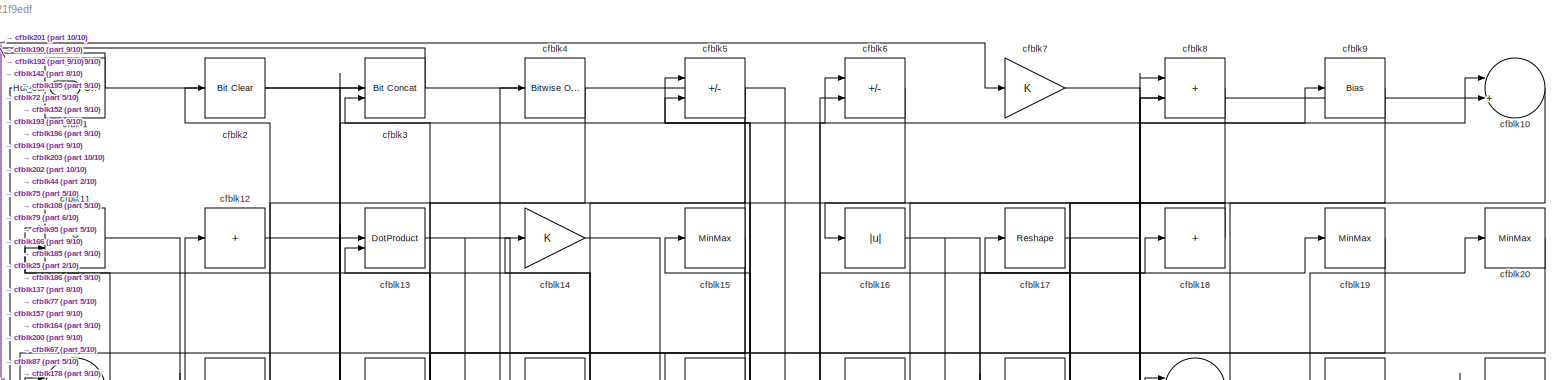
[diagram: root canvas - part 1/10, full width, top band]
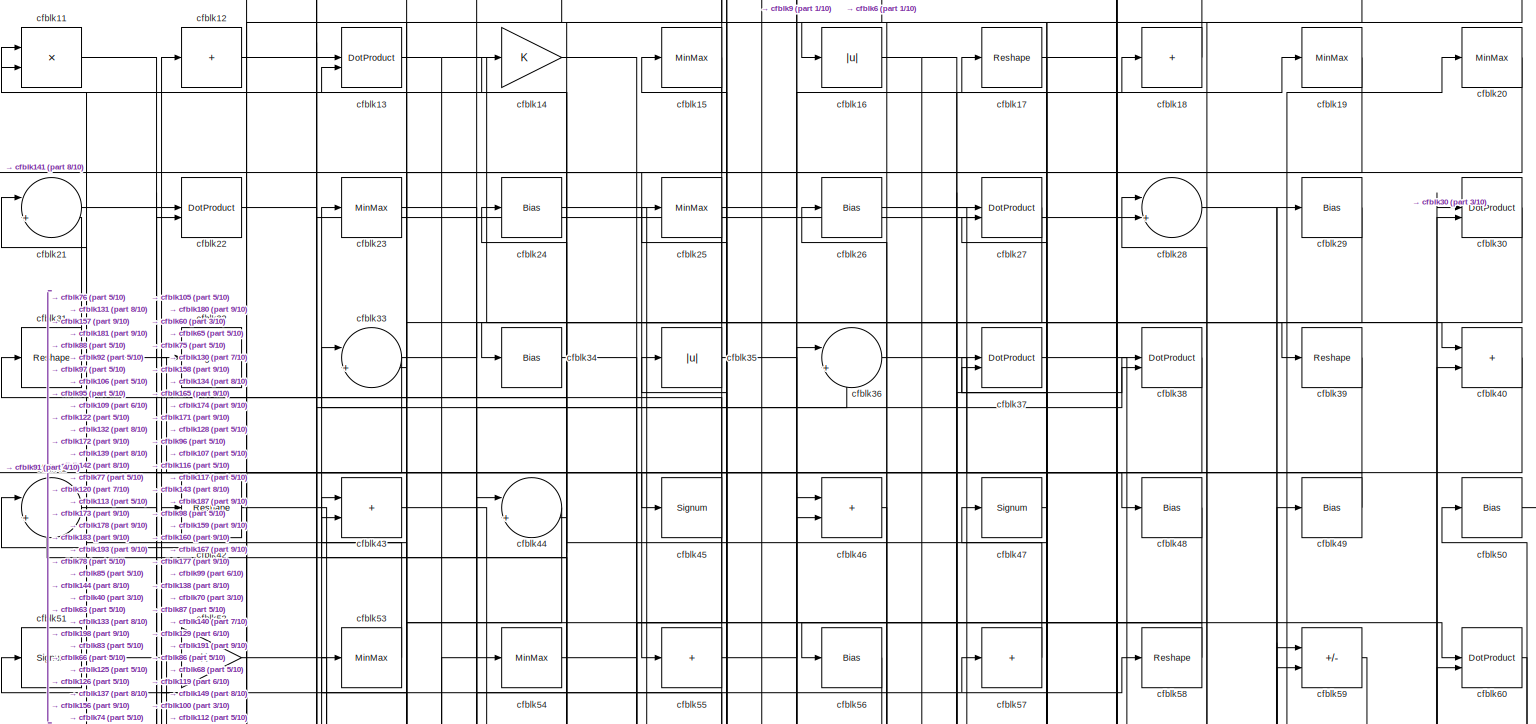
[diagram: root canvas - part 2/10, full width, top band]
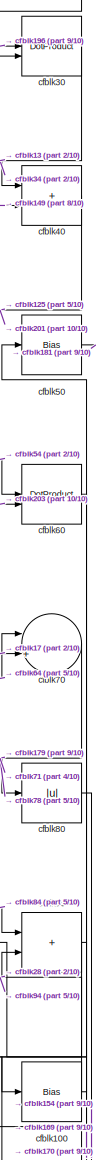
[diagram: root canvas - part 3/10, top right region]
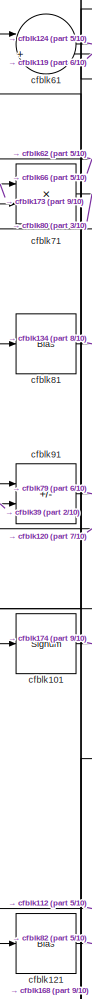
[diagram: root canvas - part 4/10, middle left region]
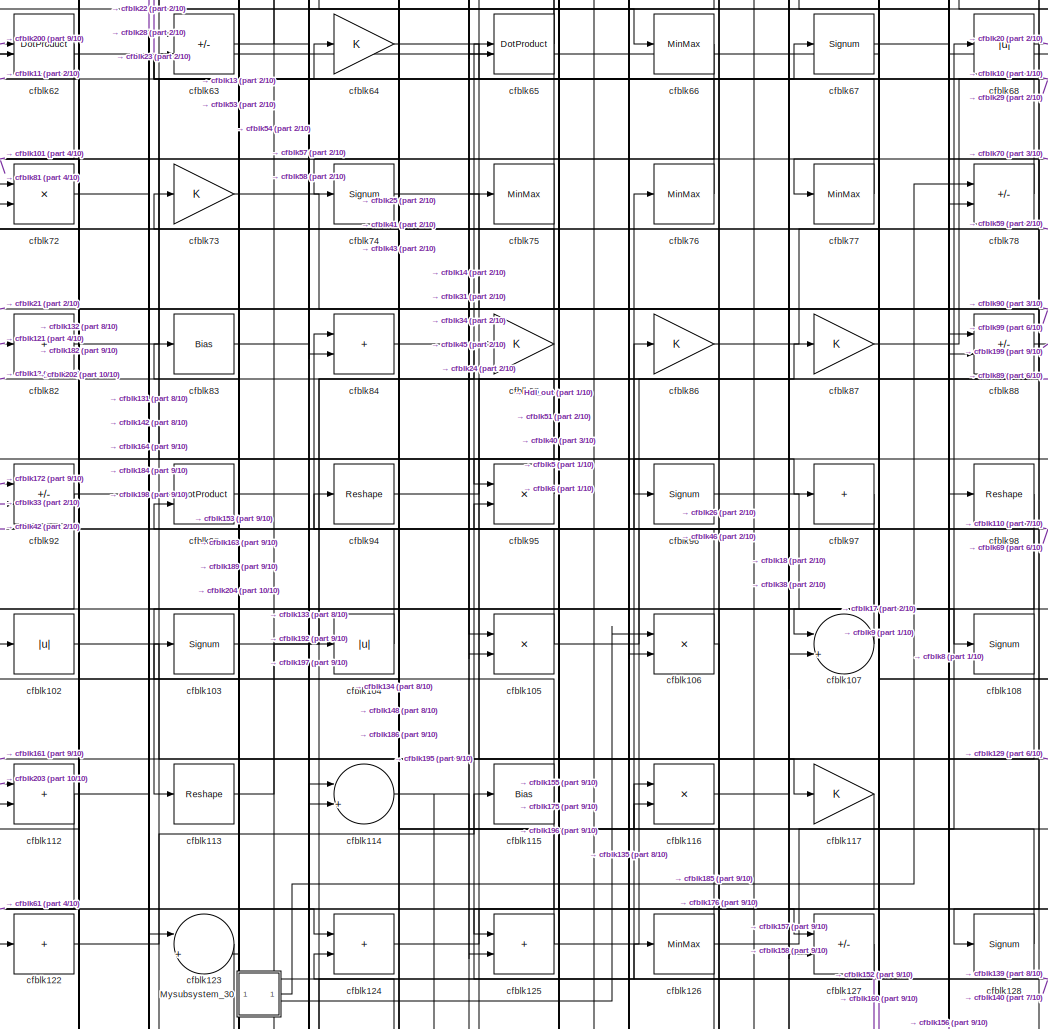
[diagram: root canvas - part 5/10, central region]
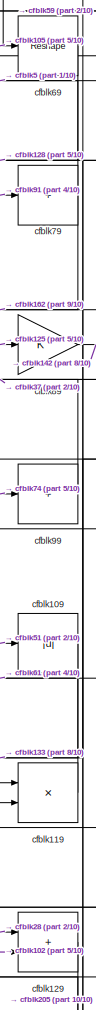
[diagram: root canvas - part 6/10, middle right region]
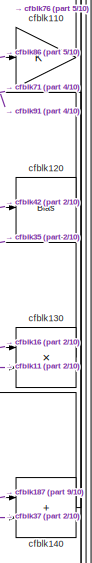
[diagram: root canvas - part 7/10, middle right region]
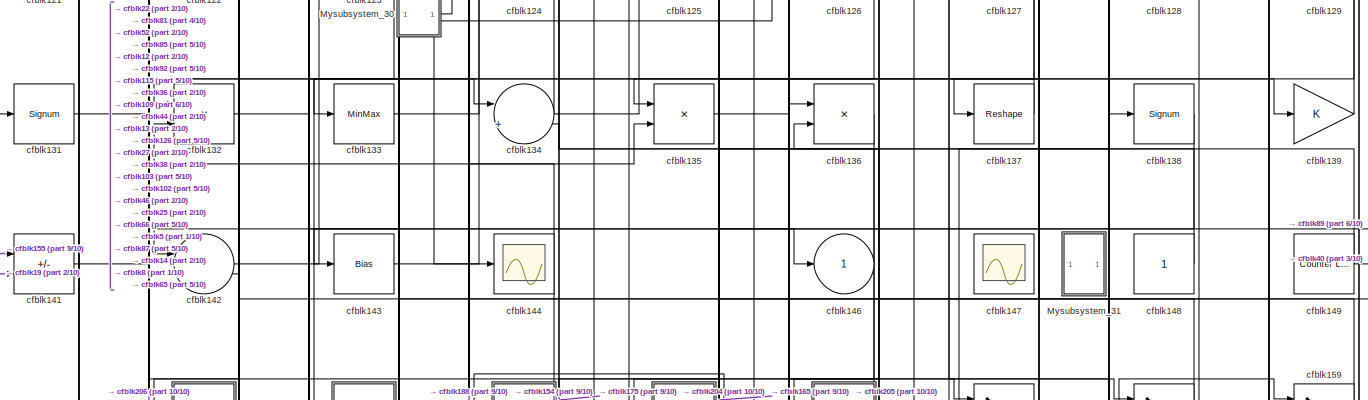
[diagram: root canvas - part 8/10, full width, bottom band]
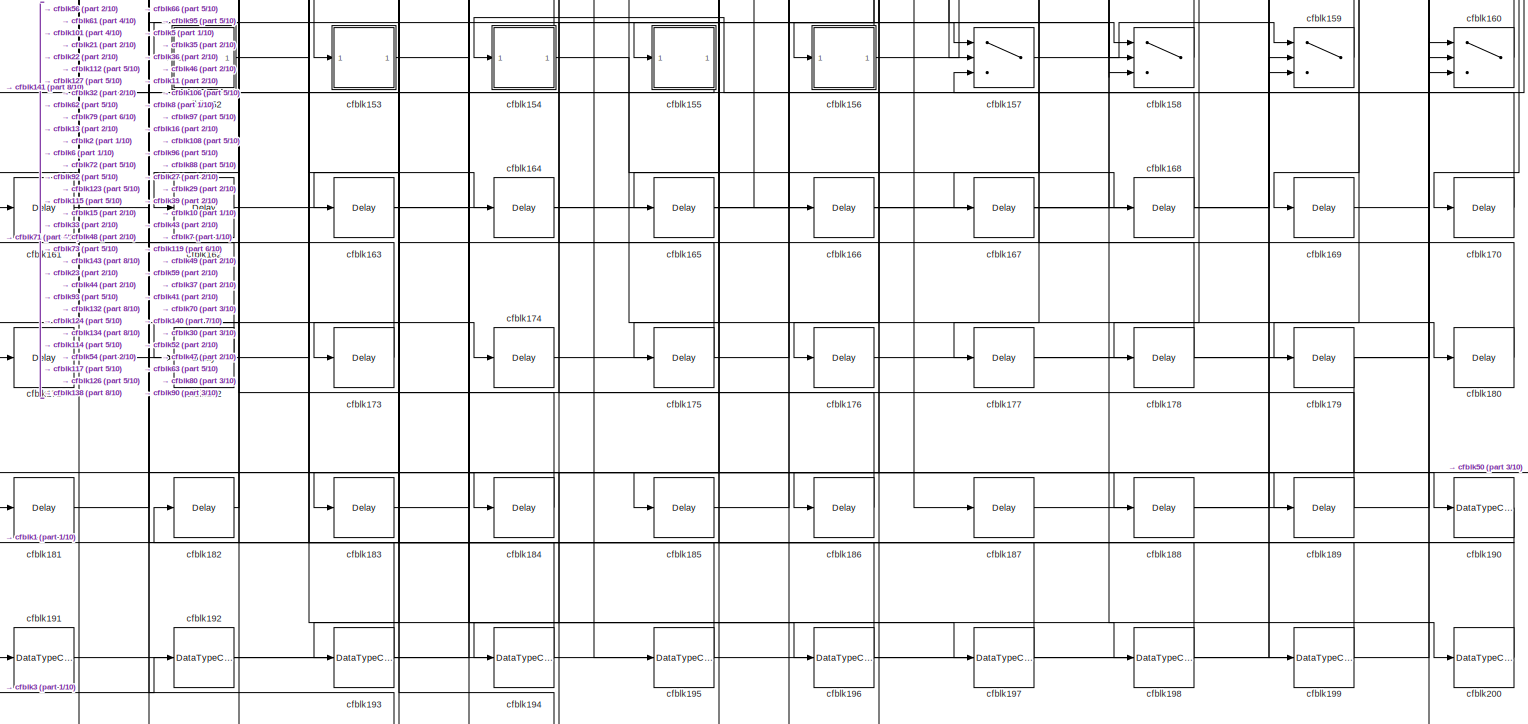
[diagram: root canvas - part 9/10, full width, bottom band]
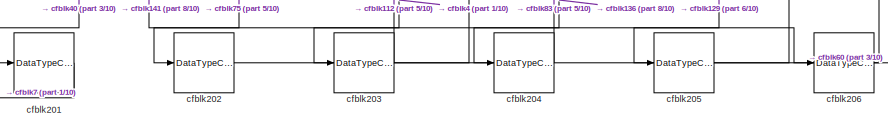
[diagram: root canvas - part 10/10, bottom left region]
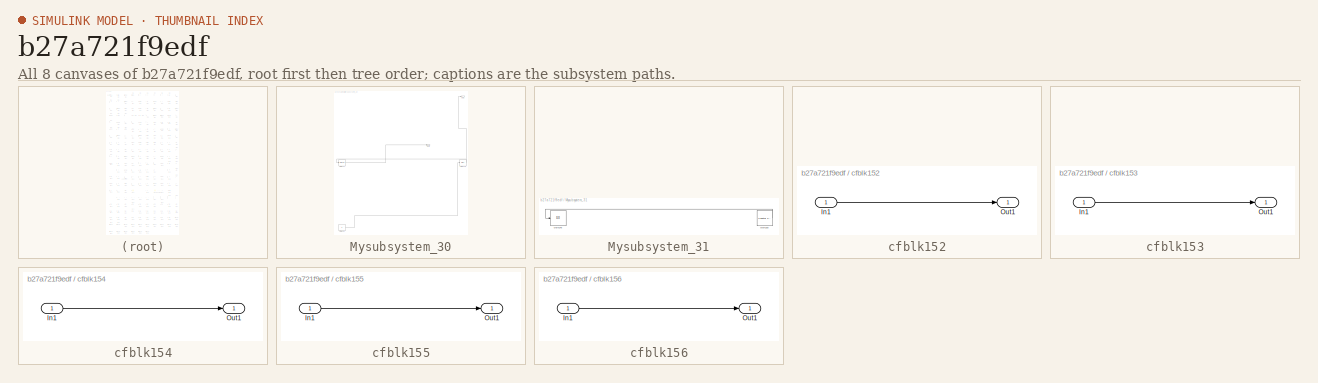
[diagram: thumbnail index - all 8 canvases of the model, root first then tree order]
MODEL slx_b27a721f9edf
KIND model
CONFIG AbsTol = auto
CONFIG EnableMultiTasking = off
CONFIG FixedStep = auto
CONFIG MaxStep = auto
CONFIG MinStep = auto
CONFIG RelTol = 1e-3
CONFIG SampleTimeConstraint = Unconstrained
CONFIG SolverName = VariableStepAuto
CONFIG StartTime = 0.0
CONFIG StopTime = 10.0
BLOCK [Outport] Hdl_out
  OutDataTypeStr = uint8
  Port = 2
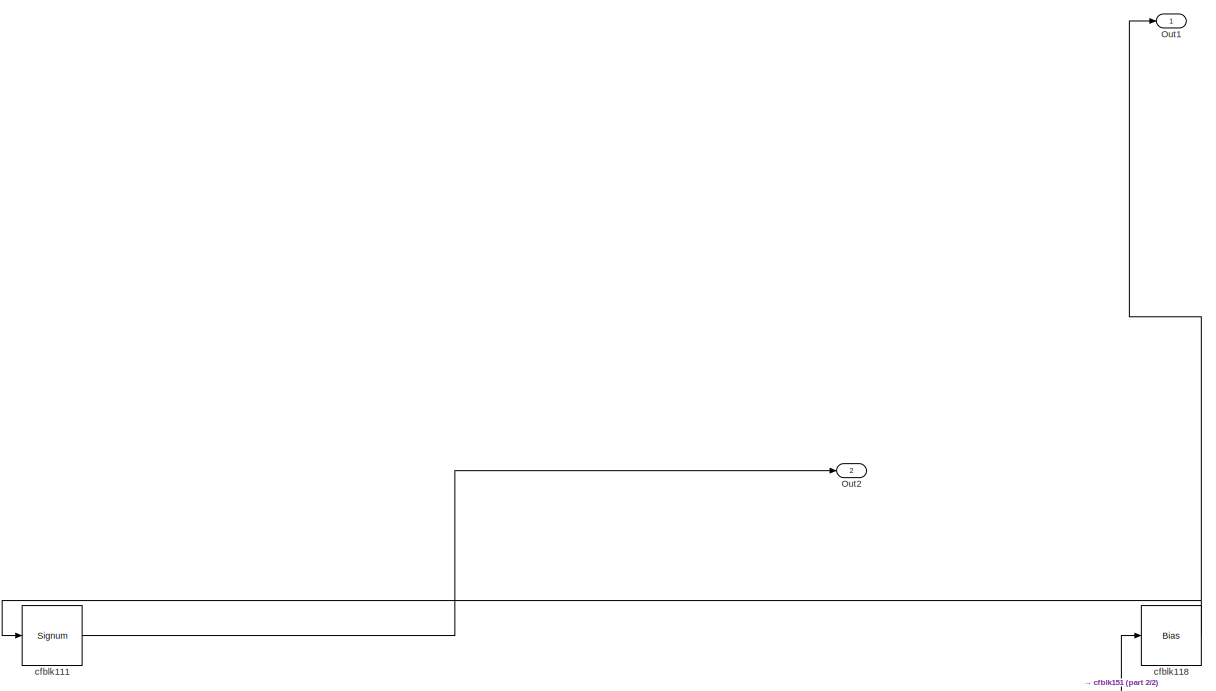
[diagram: Mysubsystem_30 - part 1/2, full width, top band]
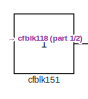
[diagram: Mysubsystem_30 - part 2/2, bottom left region]
BLOCK [SubSystem] Mysubsystem_30
  RTWFcnName = Mysubsystem_30
  RTWFcnNameOpts = User specified
  RTWFileNameOpts = Use function name
  RTWSystemCode = Reusable function
  TreatAsAtomicUnit = on
BLOCK [Outport] Mysubsystem_30/Out1
BLOCK [Outport] Mysubsystem_30/Out2
  Port = 2
BLOCK [Signum] Mysubsystem_30/cfblk111
BLOCK [Bias] Mysubsystem_30/cfblk118
  Bias = 0.0
  SaturateOnIntegerOverflow = off
BLOCK [Constant] Mysubsystem_30/cfblk151
  SampleTime = -1
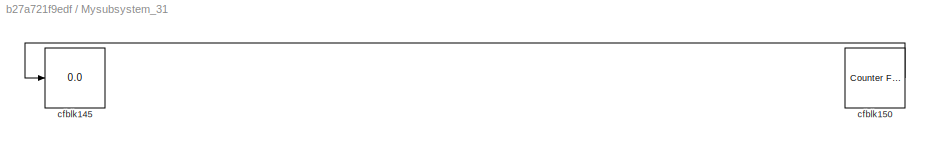
BLOCK [SubSystem] Mysubsystem_31
  RTWFcnName = Mysubsystem_31
  RTWFcnNameOpts = User specified
  RTWFileNameOpts = Use function name
  RTWSystemCode = Reusable function
  TreatAsAtomicUnit = on
BLOCK [Display] Mysubsystem_31/cfblk145
  Decimation = 1
BLOCK [Reference] Mysubsystem_31/cfblk150  REF=hdlsllib/Sources/Counter
Free-Running
  SourceBlock = hdlsllib/Sources/Counter\nFree-Running
  SourceType = Counter Free-Running
BLOCK [Reference] cfblk1  REF=simulink/Logic and Bit
Operations/Bitwise
Operator
  LibrarySourceBlock = hdlsllib/Logic and Bit\nOperations/Bitwise\nOperator
  SourceBlock = simulink/Logic and Bit\nOperations/Bitwise\nOperator
  SourceType = Bitwise Operator
BLOCK [Sum] cfblk10
  Inputs = |++
  OutDataTypeStr = uint8
BLOCK [Bias] cfblk100
  Bias = 0.0
  SaturateOnIntegerOverflow = off
BLOCK [Signum] cfblk101
BLOCK [Abs] cfblk102
  OutDataTypeStr = uint8
  SaturateOnIntegerOverflow = off
BLOCK [Signum] cfblk103
BLOCK [Abs] cfblk104
  OutDataTypeStr = uint8
  SaturateOnIntegerOverflow = off
BLOCK [Product] cfblk105
  Inputs = */
  OutDataTypeStr = uint8
  RndMeth = Zero
  SaturateOnIntegerOverflow = on
BLOCK [Product] cfblk106
  Inputs = */
  OutDataTypeStr = uint8
  RndMeth = Zero
  SaturateOnIntegerOverflow = on
BLOCK [Sum] cfblk107
  Inputs = |++
  OutDataTypeStr = uint8
BLOCK [Signum] cfblk108
BLOCK [Abs] cfblk109
  OutDataTypeStr = uint8
  SaturateOnIntegerOverflow = off
BLOCK [Product] cfblk11
  Inputs = */
  OutDataTypeStr = uint8
  RndMeth = Zero
  SaturateOnIntegerOverflow = on
BLOCK [Gain] cfblk110
  OutDataTypeStr = uint8
BLOCK [Sum] cfblk112
  IconShape = rectangular
  OutDataTypeStr = uint8
BLOCK [Reshape] cfblk113
BLOCK [Sum] cfblk114
  Inputs = |++
  OutDataTypeStr = uint8
BLOCK [Bias] cfblk115
  Bias = 0.0
  SaturateOnIntegerOverflow = off
BLOCK [Product] cfblk116
  Inputs = */
  OutDataTypeStr = uint8
  RndMeth = Zero
  SaturateOnIntegerOverflow = on
BLOCK [Gain] cfblk117
  OutDataTypeStr = uint8
BLOCK [Product] cfblk119
  Inputs = */
  OutDataTypeStr = uint8
  RndMeth = Zero
  SaturateOnIntegerOverflow = on
BLOCK [Sum] cfblk12
  IconShape = rectangular
  Inputs = +
  OutDataTypeStr = uint8
BLOCK [Bias] cfblk120
  Bias = 0.0
  SaturateOnIntegerOverflow = off
BLOCK [Bias] cfblk121
  Bias = 0.0
  SaturateOnIntegerOverflow = off
BLOCK [Sum] cfblk122
  IconShape = rectangular
  Inputs = +
  OutDataTypeStr = uint8
BLOCK [Sum] cfblk123
  Inputs = |++
  OutDataTypeStr = uint8
BLOCK [Sum] cfblk124
  IconShape = rectangular
  OutDataTypeStr = uint8
BLOCK [Sum] cfblk125
  IconShape = rectangular
  OutDataTypeStr = uint8
BLOCK [MinMax] cfblk126
  OutDataTypeStr = uint8
BLOCK [Sum] cfblk127
  IconShape = rectangular
  Inputs = +-
  OutDataTypeStr = uint8
BLOCK [Signum] cfblk128
BLOCK [Sum] cfblk129
  IconShape = rectangular
  OutDataTypeStr = uint8
BLOCK [DotProduct] cfblk13
  OutDataTypeStr = uint8
BLOCK [Product] cfblk130
  Inputs = */
  OutDataTypeStr = uint8
  RndMeth = Zero
  SaturateOnIntegerOverflow = on
BLOCK [Signum] cfblk131
BLOCK [Product] cfblk132
  Inputs = */
  OutDataTypeStr = uint8
  RndMeth = Zero
  SaturateOnIntegerOverflow = on
BLOCK [MinMax] cfblk133
  OutDataTypeStr = uint8
BLOCK [Sum] cfblk134
  Inputs = |++
  OutDataTypeStr = uint8
BLOCK [Product] cfblk135
  Inputs = */
  OutDataTypeStr = uint8
  RndMeth = Zero
  SaturateOnIntegerOverflow = on
BLOCK [Product] cfblk136
  Inputs = */
  OutDataTypeStr = uint8
  RndMeth = Zero
  SaturateOnIntegerOverflow = on
BLOCK [Reshape] cfblk137
BLOCK [Signum] cfblk138
BLOCK [Gain] cfblk139
  OutDataTypeStr = uint8
BLOCK [Gain] cfblk14
  OutDataTypeStr = uint8
BLOCK [Sum] cfblk140
  IconShape = rectangular
  OutDataTypeStr = uint8
BLOCK [Sum] cfblk141
  IconShape = rectangular
  Inputs = +-
  OutDataTypeStr = uint8
BLOCK [Sum] cfblk142
  Inputs = |++
  OutDataTypeStr = uint8
BLOCK [Bias] cfblk143
  Bias = 0.0
  SaturateOnIntegerOverflow = off
BLOCK [Scope] cfblk144
  Floating = off
  NumInputPorts = 1
  ScopeSpecificationString = Simulink.scopes.TimeScopeBlockCfg('CurrentConfiguration', extmgr.ConfigurationSet(extmgr.Configuration('Core','General UI',true),extmgr.Configuration('Core','Source UI',true),extmgr.Configuration('Sources','WiredSimulink',true,'DataLoggingVariableName','ScopeData2','DataLoggingSaveFormat','Array','DataLoggingLimitDataPoints',true,'DataLoggingDecimation','1'),extmgr.Configuration('Visuals','Time Do...<+868ch>
BLOCK [Outport] cfblk146
  OutDataTypeStr = uint8
  VectorParamsAs1DForOutWhenUnconnected = off
BLOCK [Scope] cfblk147
  Floating = on
  NumInputPorts = 1
  ScopeSpecificationString = Simulink.scopes.TimeScopeBlockCfg('CurrentConfiguration', extmgr.ConfigurationSet(extmgr.Configuration('Core','General UI',true,'FigureColor',[0.156862745098039 0.156862745098039 0.156862745098039]),extmgr.Configuration('Core','Source UI',true),extmgr.Configuration('Sources','WiredSimulink',true,'DataLoggingVariableName','ScopeData1','DataLoggingSaveFormat','StructureWithTime','DataLoggingLimitDat...<+2713ch>
BLOCK [Constant] cfblk148
  OutDataTypeStr = uint8
  SampleTime = -1
BLOCK [Reference] cfblk149  REF=hdlsllib/Sources/Counter
Limited
  SourceBlock = hdlsllib/Sources/Counter\nLimited
  SourceType = Counter Limited
BLOCK [MinMax] cfblk15
  OutDataTypeStr = uint8
BLOCK [SubSystem] cfblk152
  LibrarySourceBlock = hdlsllib/Ports &\nSubsystems/Subsystem
BLOCK [Inport] cfblk152/In1
BLOCK [Outport] cfblk152/Out1
BLOCK [SubSystem] cfblk153
  LibrarySourceBlock = hdlsllib/Ports &\nSubsystems/Subsystem
BLOCK [Inport] cfblk153/In1
BLOCK [Outport] cfblk153/Out1
BLOCK [SubSystem] cfblk154
  LibrarySourceBlock = hdlsllib/Ports &\nSubsystems/Subsystem
BLOCK [Inport] cfblk154/In1
BLOCK [Outport] cfblk154/Out1
BLOCK [SubSystem] cfblk155
  LibrarySourceBlock = hdlsllib/Ports &\nSubsystems/Subsystem
BLOCK [Inport] cfblk155/In1
BLOCK [Outport] cfblk155/Out1
BLOCK [SubSystem] cfblk156
  LibrarySourceBlock = hdlsllib/Ports &\nSubsystems/Subsystem
BLOCK [Inport] cfblk156/In1
BLOCK [Outport] cfblk156/Out1
BLOCK [Switch] cfblk157
  InputSameDT = off
  OutDataTypeStr = uint8
  SaturateOnIntegerOverflow = off
BLOCK [Switch] cfblk158
  InputSameDT = off
  OutDataTypeStr = uint8
  SaturateOnIntegerOverflow = off
BLOCK [Switch] cfblk159
  InputSameDT = off
  OutDataTypeStr = uint8
  SaturateOnIntegerOverflow = off
BLOCK [Abs] cfblk16
  OutDataTypeStr = uint8
  SaturateOnIntegerOverflow = off
BLOCK [Switch] cfblk160
  InputSameDT = off
  OutDataTypeStr = uint8
  SaturateOnIntegerOverflow = off
BLOCK [Delay] cfblk161
  InputPortMap = u0
  SampleTime = 1
BLOCK [Delay] cfblk162
  InputPortMap = u0
  SampleTime = 1
BLOCK [Delay] cfblk163
  InputPortMap = u0
  SampleTime = 1
BLOCK [Delay] cfblk164
  InputPortMap = u0
  SampleTime = 1
BLOCK [Delay] cfblk165
  InputPortMap = u0
  SampleTime = 1
BLOCK [Delay] cfblk166
  InputPortMap = u0
  SampleTime = 1
BLOCK [Delay] cfblk167
  InputPortMap = u0
  SampleTime = 1
BLOCK [Delay] cfblk168
  InputPortMap = u0
  SampleTime = 1
BLOCK [Delay] cfblk169
  InputPortMap = u0
  SampleTime = 1
BLOCK [Reshape] cfblk17
BLOCK [Delay] cfblk170
  InputPortMap = u0
  SampleTime = 1
BLOCK [Delay] cfblk171
  InputPortMap = u0
  SampleTime = 1
BLOCK [Delay] cfblk172
  InputPortMap = u0
  SampleTime = 1
BLOCK [Delay] cfblk173
  InputPortMap = u0
  SampleTime = 1
BLOCK [Delay] cfblk174
  InputPortMap = u0
  SampleTime = 1
BLOCK [Delay] cfblk175
  InputPortMap = u0
  SampleTime = 1
BLOCK [Delay] cfblk176
  InputPortMap = u0
  SampleTime = 1
BLOCK [Delay] cfblk177
  InputPortMap = u0
  SampleTime = 1
BLOCK [Delay] cfblk178
  InputPortMap = u0
  SampleTime = 1
BLOCK [Delay] cfblk179
  InputPortMap = u0
  SampleTime = 1
BLOCK [Sum] cfblk18
  IconShape = rectangular
  Inputs = +
  OutDataTypeStr = uint8
BLOCK [Delay] cfblk180
  InputPortMap = u0
  SampleTime = 1
BLOCK [Delay] cfblk181
  InputPortMap = u0
  SampleTime = 1
BLOCK [Delay] cfblk182
  InputPortMap = u0
  SampleTime = 1
BLOCK [Delay] cfblk183
  InputPortMap = u0
  SampleTime = 1
BLOCK [Delay] cfblk184
  InputPortMap = u0
  SampleTime = 1
BLOCK [Delay] cfblk185
  InputPortMap = u0
  SampleTime = 1
BLOCK [Delay] cfblk186
  InputPortMap = u0
  SampleTime = 1
BLOCK [Delay] cfblk187
  InputPortMap = u0
  SampleTime = 1
BLOCK [Delay] cfblk188
  InputPortMap = u0
  SampleTime = 1
BLOCK [Delay] cfblk189
  InputPortMap = u0
  SampleTime = 1
BLOCK [MinMax] cfblk19
  OutDataTypeStr = uint8
BLOCK [DataTypeConversion] cfblk190
  OutDataTypeStr = uint8
  RndMeth = Floor
  SaturateOnIntegerOverflow = off
BLOCK [DataTypeConversion] cfblk191
  OutDataTypeStr = uint8
  RndMeth = Floor
  SaturateOnIntegerOverflow = off
BLOCK [DataTypeConversion] cfblk192
  OutDataTypeStr = uint8
  RndMeth = Floor
  SaturateOnIntegerOverflow = off
BLOCK [DataTypeConversion] cfblk193
  OutDataTypeStr = uint8
  RndMeth = Floor
  SaturateOnIntegerOverflow = off
BLOCK [DataTypeConversion] cfblk194
  OutDataTypeStr = uint8
  RndMeth = Floor
  SaturateOnIntegerOverflow = off
BLOCK [DataTypeConversion] cfblk195
  OutDataTypeStr = uint8
  RndMeth = Floor
  SaturateOnIntegerOverflow = off
BLOCK [DataTypeConversion] cfblk196
  OutDataTypeStr = uint8
  RndMeth = Floor
  SaturateOnIntegerOverflow = off
BLOCK [DataTypeConversion] cfblk197
  OutDataTypeStr = uint8
  RndMeth = Floor
  SaturateOnIntegerOverflow = off
BLOCK [DataTypeConversion] cfblk198
  OutDataTypeStr = uint8
  RndMeth = Floor
  SaturateOnIntegerOverflow = off
BLOCK [DataTypeConversion] cfblk199
  OutDataTypeStr = uint8
  RndMeth = Floor
  SaturateOnIntegerOverflow = off
BLOCK [Reference] cfblk2  REF=simulink/Logic and Bit
Operations/Bit Clear
  LibrarySourceBlock = hdlsllib/Logic and Bit\nOperations/Bit Clear
  SourceBlock = simulink/Logic and Bit\nOperations/Bit Clear
  SourceType = Bit Clear
BLOCK [MinMax] cfblk20
  OutDataTypeStr = uint8
BLOCK [DataTypeConversion] cfblk200
  OutDataTypeStr = uint8
  RndMeth = Floor
  SaturateOnIntegerOverflow = off
BLOCK [DataTypeConversion] cfblk201
  OutDataTypeStr = uint8
  RndMeth = Floor
  SaturateOnIntegerOverflow = off
BLOCK [DataTypeConversion] cfblk202
  OutDataTypeStr = uint8
  RndMeth = Floor
  SaturateOnIntegerOverflow = off
BLOCK [DataTypeConversion] cfblk203
  OutDataTypeStr = uint8
  RndMeth = Floor
  SaturateOnIntegerOverflow = off
BLOCK [DataTypeConversion] cfblk204
  OutDataTypeStr = uint8
  RndMeth = Floor
  SaturateOnIntegerOverflow = off
BLOCK [DataTypeConversion] cfblk205
  OutDataTypeStr = uint8
  RndMeth = Floor
  SaturateOnIntegerOverflow = off
BLOCK [DataTypeConversion] cfblk206
  OutDataTypeStr = uint8
  RndMeth = Floor
  SaturateOnIntegerOverflow = off
BLOCK [Sum] cfblk21
  Inputs = |++
  OutDataTypeStr = uint8
BLOCK [DotProduct] cfblk22
  OutDataTypeStr = uint8
BLOCK [MinMax] cfblk23
  OutDataTypeStr = uint8
BLOCK [Bias] cfblk24
  Bias = 0.0
  SaturateOnIntegerOverflow = off
BLOCK [MinMax] cfblk25
  OutDataTypeStr = uint8
BLOCK [Bias] cfblk26
  Bias = 0.0
  SaturateOnIntegerOverflow = off
BLOCK [DotProduct] cfblk27
  OutDataTypeStr = uint8
BLOCK [Sum] cfblk28
  Inputs = |++
  OutDataTypeStr = uint8
BLOCK [Bias] cfblk29
  Bias = 0.0
  SaturateOnIntegerOverflow = off
BLOCK [Reference] cfblk3  REF=hdlsllib/Logic and Bit
Operations/Bit Concat
  SourceBlock = hdlsllib/Logic and Bit\nOperations/Bit Concat
  SourceType = Bit Concat
BLOCK [DotProduct] cfblk30
  OutDataTypeStr = uint8
BLOCK [Reshape] cfblk31
BLOCK [Signum] cfblk32
BLOCK [Sum] cfblk33
  Inputs = |++
  OutDataTypeStr = uint8
BLOCK [Bias] cfblk34
  Bias = 0.0
  SaturateOnIntegerOverflow = off
BLOCK [Abs] cfblk35
  OutDataTypeStr = uint8
  SaturateOnIntegerOverflow = off
BLOCK [Sum] cfblk36
  Inputs = |++
  OutDataTypeStr = uint8
BLOCK [DotProduct] cfblk37
  OutDataTypeStr = uint8
BLOCK [DotProduct] cfblk38
  OutDataTypeStr = uint8
BLOCK [Reshape] cfblk39
BLOCK [Reference] cfblk4  REF=simulink/Logic and Bit
Operations/Bitwise
Operator
  LibrarySourceBlock = hdlsllib/Logic and Bit\nOperations/Bitwise\nOperator
  SourceBlock = simulink/Logic and Bit\nOperations/Bitwise\nOperator
  SourceType = Bitwise Operator
BLOCK [Sum] cfblk40
  IconShape = rectangular
  OutDataTypeStr = uint8
BLOCK [Sum] cfblk41
  Inputs = |++
  OutDataTypeStr = uint8
BLOCK [Reshape] cfblk42
BLOCK [Sum] cfblk43
  IconShape = rectangular
  OutDataTypeStr = uint8
BLOCK [Sum] cfblk44
  Inputs = |++
  OutDataTypeStr = uint8
BLOCK [Signum] cfblk45
BLOCK [Sum] cfblk46
  IconShape = rectangular
  OutDataTypeStr = uint8
BLOCK [Signum] cfblk47
BLOCK [Bias] cfblk48
  Bias = 0.0
  SaturateOnIntegerOverflow = off
BLOCK [Bias] cfblk49
  Bias = 0.0
  SaturateOnIntegerOverflow = off
BLOCK [Sum] cfblk5
  IconShape = rectangular
  Inputs = +-
  OutDataTypeStr = uint8
BLOCK [Bias] cfblk50
  Bias = 0.0
  SaturateOnIntegerOverflow = off
BLOCK [Signum] cfblk51
BLOCK [Gain] cfblk52
  OutDataTypeStr = uint8
BLOCK [MinMax] cfblk53
  OutDataTypeStr = uint8
BLOCK [MinMax] cfblk54
  OutDataTypeStr = uint8
BLOCK [Sum] cfblk55
  IconShape = rectangular
  Inputs = +
  OutDataTypeStr = uint8
BLOCK [Bias] cfblk56
  Bias = 0.0
  SaturateOnIntegerOverflow = off
BLOCK [Sum] cfblk57
  IconShape = rectangular
  Inputs = +
  OutDataTypeStr = uint8
BLOCK [Reshape] cfblk58
BLOCK [Sum] cfblk59
  IconShape = rectangular
  Inputs = +-
  OutDataTypeStr = uint8
BLOCK [Sum] cfblk6
  IconShape = rectangular
  Inputs = +-
  OutDataTypeStr = uint8
BLOCK [DotProduct] cfblk60
  OutDataTypeStr = uint8
BLOCK [Sum] cfblk61
  Inputs = |++
  OutDataTypeStr = uint8
BLOCK [DotProduct] cfblk62
  OutDataTypeStr = uint8
BLOCK [Sum] cfblk63
  IconShape = rectangular
  Inputs = +-
  OutDataTypeStr = uint8
BLOCK [Gain] cfblk64
  OutDataTypeStr = uint8
BLOCK [DotProduct] cfblk65
  OutDataTypeStr = uint8
BLOCK [MinMax] cfblk66
  OutDataTypeStr = uint8
BLOCK [Signum] cfblk67
BLOCK [Abs] cfblk68
  OutDataTypeStr = uint8
  SaturateOnIntegerOverflow = off
BLOCK [Reshape] cfblk69
BLOCK [Gain] cfblk7
  OutDataTypeStr = uint8
BLOCK [Sum] cfblk70
  Inputs = |++
  OutDataTypeStr = uint8
BLOCK [Product] cfblk71
  Inputs = */
  OutDataTypeStr = uint8
  RndMeth = Zero
  SaturateOnIntegerOverflow = on
BLOCK [Product] cfblk72
  Inputs = */
  OutDataTypeStr = uint8
  RndMeth = Zero
  SaturateOnIntegerOverflow = on
BLOCK [Gain] cfblk73
  OutDataTypeStr = uint8
BLOCK [Signum] cfblk74
BLOCK [MinMax] cfblk75
  OutDataTypeStr = uint8
BLOCK [MinMax] cfblk76
  OutDataTypeStr = uint8
BLOCK [MinMax] cfblk77
  OutDataTypeStr = uint8
BLOCK [Sum] cfblk78
  IconShape = rectangular
  Inputs = +-
  OutDataTypeStr = uint8
BLOCK [Sum] cfblk79
  IconShape = rectangular
  Inputs = +
  OutDataTypeStr = uint8
BLOCK [Sum] cfblk8
  IconShape = rectangular
  OutDataTypeStr = uint8
BLOCK [Abs] cfblk80
  OutDataTypeStr = uint8
  SaturateOnIntegerOverflow = off
BLOCK [Bias] cfblk81
  Bias = 0.0
  SaturateOnIntegerOverflow = off
BLOCK [Sum] cfblk82
  IconShape = rectangular
  Inputs = +
  OutDataTypeStr = uint8
BLOCK [Bias] cfblk83
  Bias = 0.0
  SaturateOnIntegerOverflow = off
BLOCK [Sum] cfblk84
  IconShape = rectangular
  OutDataTypeStr = uint8
BLOCK [Gain] cfblk85
  OutDataTypeStr = uint8
BLOCK [Gain] cfblk86
  OutDataTypeStr = uint8
BLOCK [Gain] cfblk87
  OutDataTypeStr = uint8
BLOCK [Sum] cfblk88
  IconShape = rectangular
  Inputs = +-
  OutDataTypeStr = uint8
BLOCK [Gain] cfblk89
  OutDataTypeStr = uint8
BLOCK [Bias] cfblk9
  Bias = 0.0
  SaturateOnIntegerOverflow = off
BLOCK [Sum] cfblk90
  IconShape = rectangular
  OutDataTypeStr = uint8
BLOCK [Sum] cfblk91
  IconShape = rectangular
  Inputs = +-
  OutDataTypeStr = uint8
BLOCK [Sum] cfblk92
  IconShape = rectangular
  Inputs = +-
  OutDataTypeStr = uint8
BLOCK [DotProduct] cfblk93
  OutDataTypeStr = uint8
BLOCK [Reshape] cfblk94
BLOCK [Product] cfblk95
  Inputs = */
  OutDataTypeStr = uint8
  RndMeth = Zero
  SaturateOnIntegerOverflow = on
BLOCK [Signum] cfblk96
BLOCK [Sum] cfblk97
  IconShape = rectangular
  Inputs = +
  OutDataTypeStr = uint8
BLOCK [Reshape] cfblk98
BLOCK [Sum] cfblk99
  IconShape = rectangular
  Inputs = +
  OutDataTypeStr = uint8
LINE Mysubsystem_30/cfblk111:1 -> Mysubsystem_30/Out2:1
NET Mysubsystem_30/cfblk118:1 -> Mysubsystem_30/Out1:1, Mysubsystem_30/cfblk111:1
LINE Mysubsystem_30/cfblk151:1 -> Mysubsystem_30/cfblk118:1
LINE Mysubsystem_30:1 -> cfblk78:1
LINE Mysubsystem_30:2 -> cfblk106:1
LINE Mysubsystem_31/cfblk150:1 -> Mysubsystem_31/cfblk145:1
NET cfblk100:1 -> cfblk28:1, cfblk50:1
LINE cfblk101:1 -> cfblk174:1
NET cfblk102:1 -> cfblk123:1, cfblk129:2
LINE cfblk103:1 -> cfblk85:1
LINE cfblk104:1 -> cfblk63:1
NET cfblk105:1 -> cfblk24:1, cfblk69:1
NET cfblk106:1 -> cfblk156:1, cfblk42:1
LINE cfblk107:1 -> cfblk84:1
NET cfblk108:1 -> cfblk157:2, cfblk161:1, cfblk5:2
LINE cfblk109:1 -> cfblk133:1
LINE cfblk10:1 -> cfblk178:1
LINE cfblk110:1 -> cfblk76:1
NET cfblk112:1 -> cfblk121:1, cfblk28:2
NET cfblk113:1 -> cfblk104:1, cfblk13:2
NET cfblk114:1 -> cfblk116:2, cfblk195:1
NET cfblk115:1 -> cfblk163:1, cfblk72:2
LINE cfblk116:1 -> cfblk18:1
LINE cfblk117:1 -> cfblk155:1
LINE cfblk119:1 -> cfblk61:2
NET cfblk11:1 -> cfblk130:2, cfblk48:1
NET cfblk120:1 -> cfblk71:2, cfblk91:1
LINE cfblk121:1 -> cfblk82:1
LINE cfblk122:1 -> cfblk64:1
LINE cfblk123:1 -> cfblk153:1
LINE cfblk124:1 -> cfblk127:1
NET cfblk125:1 -> cfblk41:2, cfblk89:1
NET cfblk126:1 -> cfblk185:1, cfblk43:2, cfblk68:1
LINE cfblk127:1 -> cfblk152:1
NET cfblk128:1 -> cfblk116:1, cfblk26:1, cfblk94:1
LINE cfblk129:1 -> cfblk205:1
LINE cfblk12:1 -> cfblk139:1
LINE cfblk130:1 -> cfblk35:1
LINE cfblk131:1 -> cfblk22:2
NET cfblk132:1 -> cfblk146:1, cfblk52:1
NET cfblk133:1 -> cfblk126:1, cfblk38:2
NET cfblk134:1 -> cfblk103:1, cfblk46:1
LINE cfblk135:1 -> cfblk87:1
LINE cfblk136:1 -> cfblk204:1
LINE cfblk137:1 -> cfblk14:1
LINE cfblk138:1 -> cfblk165:1
LINE cfblk139:1 -> cfblk65:1
NET cfblk13:1 -> cfblk144:1, cfblk40:1
NET cfblk140:1 -> cfblk110:1, cfblk86:1
LINE cfblk141:1 -> cfblk206:1
NET cfblk142:1 -> cfblk115:1, cfblk36:2
NET cfblk143:1 -> cfblk135:2, cfblk188:1, cfblk27:1
LINE cfblk148:1 -> cfblk102:1
NET cfblk149:1 -> cfblk25:1, cfblk40:2
LINE cfblk14:1 -> cfblk65:2
LINE cfblk152/In1:1 -> cfblk152/Out1:1
LINE cfblk152:1 -> cfblk6:1
LINE cfblk153/In1:1 -> cfblk153/Out1:1
NET cfblk153:1 -> cfblk189:1, cfblk73:1
LINE cfblk154/In1:1 -> cfblk154/Out1:1
NET cfblk154:1 -> cfblk132:2, cfblk168:1
LINE cfblk155/In1:1 -> cfblk155/Out1:1
LINE cfblk155:1 -> cfblk141:1
LINE cfblk156/In1:1 -> cfblk156/Out1:1
NET cfblk156:1 -> cfblk11:2, cfblk88:1
NET cfblk157:1 -> cfblk10:1, cfblk159:1
LINE cfblk158:1 -> cfblk15:1
NET cfblk159:1 -> cfblk37:2, cfblk41:1
NET cfblk15:1 -> cfblk173:1, cfblk55:1
NET cfblk160:1 -> cfblk47:1, cfblk63:2
LINE cfblk161:1 -> cfblk190:1
LINE cfblk162:1 -> cfblk119:2
LINE cfblk163:1 -> cfblk114:1
LINE cfblk164:1 -> cfblk8:1
LINE cfblk165:1 -> cfblk36:1
LINE cfblk166:1 -> cfblk159:2
LINE cfblk167:1 -> cfblk59:2
LINE cfblk168:1 -> cfblk61:1
LINE cfblk169:1 -> cfblk30:2
NET cfblk16:1 -> cfblk130:1, cfblk187:1
LINE cfblk170:1 -> cfblk157:3
LINE cfblk171:1 -> cfblk13:1
LINE cfblk172:1 -> cfblk92:1
LINE cfblk173:1 -> cfblk71:1
LINE cfblk174:1 -> cfblk46:2
LINE cfblk175:1 -> cfblk134:2
LINE cfblk176:1 -> cfblk160:2
LINE cfblk177:1 -> cfblk160:1
LINE cfblk178:1 -> cfblk33:1
LINE cfblk179:1 -> cfblk194:1
NET cfblk17:1 -> cfblk107:1, cfblk70:2
LINE cfblk180:1 -> cfblk27:2
LINE cfblk181:1 -> cfblk22:1
LINE cfblk182:1 -> cfblk62:2
LINE cfblk183:1 -> cfblk44:1
LINE cfblk184:1 -> cfblk112:2
LINE cfblk185:1 -> cfblk6:2
LINE cfblk186:1 -> cfblk124:2
LINE cfblk187:1 -> cfblk140:1
LINE cfblk188:1 -> cfblk159:3
LINE cfblk189:1 -> cfblk123:2
LINE cfblk18:1 -> cfblk16:1
LINE cfblk190:1 -> cfblk1:1
LINE cfblk191:1 -> cfblk49:1
LINE cfblk192:1 -> cfblk114:2
LINE cfblk193:1 -> cfblk3:1
LINE cfblk194:1 -> cfblk3:2
LINE cfblk195:1 -> cfblk2:1
NET cfblk196:1 -> cfblk30:1, cfblk95:2
LINE cfblk197:1 -> cfblk182:1
LINE cfblk198:1 -> cfblk93:1
LINE cfblk199:1 -> cfblk93:2
LINE cfblk19:1 -> cfblk141:2
LINE cfblk1:1 -> cfblk191:1
LINE cfblk200:1 -> cfblk62:1
LINE cfblk201:1 -> cfblk7:1
LINE cfblk202:1 -> cfblk4:1
NET cfblk203:1 -> cfblk112:1, cfblk60:2
LINE cfblk204:1 -> cfblk83:1
LINE cfblk205:1 -> cfblk136:1
LINE cfblk206:1 -> cfblk136:2
LINE cfblk20:1 -> cfblk33:2
NET cfblk21:1 -> cfblk157:1, cfblk88:2
LINE cfblk22:1 -> cfblk106:2
LINE cfblk23:1 -> cfblk198:1
NET cfblk24:1 -> cfblk107:2, cfblk117:1
NET cfblk25:1 -> cfblk74:1, cfblk9:1
LINE cfblk26:1 -> cfblk98:1
LINE cfblk27:1 -> cfblk193:1
LINE cfblk28:1 -> cfblk129:1
LINE cfblk29:1 -> cfblk177:1
LINE cfblk2:1 -> cfblk196:1
LINE cfblk30:1 -> cfblk34:1
NET cfblk31:1 -> cfblk105:1, cfblk21:2
LINE cfblk32:1 -> cfblk172:1
NET cfblk33:1 -> cfblk39:1, cfblk92:2
LINE cfblk34:1 -> cfblk75:1
LINE cfblk35:1 -> cfblk158:1
LINE cfblk36:1 -> cfblk138:1
LINE cfblk37:1 -> cfblk140:2
LINE cfblk38:1 -> cfblk122:1
NET cfblk39:1 -> cfblk167:1, cfblk91:2
LINE cfblk3:1 -> cfblk192:1
NET cfblk40:1 -> cfblk125:1, cfblk201:1
LINE cfblk41:1 -> cfblk97:1
LINE cfblk42:1 -> cfblk120:1
NET cfblk43:1 -> cfblk158:2, cfblk66:1
LINE cfblk44:1 -> cfblk143:1
NET cfblk45:1 -> cfblk105:2, cfblk31:1
LINE cfblk46:1 -> cfblk96:1
LINE cfblk47:1 -> cfblk17:1
LINE cfblk48:1 -> cfblk183:1
LINE cfblk49:1 -> cfblk45:1
LINE cfblk4:1 -> cfblk203:1
LINE cfblk50:1 -> cfblk181:1
LINE cfblk51:1 -> cfblk109:1
LINE cfblk52:1 -> cfblk160:3
LINE cfblk53:1 -> cfblk21:1
NET cfblk54:1 -> cfblk180:1, cfblk60:1
LINE cfblk55:1 -> cfblk19:1
LINE cfblk56:1 -> cfblk171:1
LINE cfblk57:1 -> cfblk32:1
LINE cfblk58:1 -> cfblk56:1
LINE cfblk59:1 -> cfblk119:1
NET cfblk5:1 -> cfblk142:2, cfblk166:1, cfblk72:1
LINE cfblk60:1 -> cfblk100:1
LINE cfblk61:1 -> cfblk124:1
LINE cfblk62:1 -> cfblk81:1
NET cfblk63:1 -> cfblk54:1, cfblk84:2
LINE cfblk64:1 -> cfblk70:1
LINE cfblk65:1 -> cfblk51:1
NET cfblk66:1 -> cfblk101:1, cfblk125:2, cfblk135:1, cfblk175:1
LINE cfblk67:1 -> cfblk8:2
LINE cfblk68:1 -> cfblk20:1
LINE cfblk69:1 -> cfblk128:1
NET cfblk6:1 -> cfblk44:2, cfblk95:1
NET cfblk70:1 -> cfblk179:1, cfblk78:2
LINE cfblk71:1 -> cfblk80:1
LINE cfblk72:1 -> cfblk164:1
LINE cfblk73:1 -> cfblk127:2
LINE cfblk74:1 -> cfblk99:1
NET cfblk75:1 -> Hdl_out:1, cfblk202:1
LINE cfblk76:1 -> cfblk11:1
LINE cfblk77:1 -> cfblk23:1
LINE cfblk78:1 -> cfblk43:1
NET cfblk79:1 -> cfblk162:1, cfblk5:1
LINE cfblk7:1 -> cfblk200:1
LINE cfblk80:1 -> cfblk154:1
LINE cfblk81:1 -> cfblk134:1
LINE cfblk82:1 -> cfblk67:1
NET cfblk83:1 -> cfblk57:1, cfblk58:1
LINE cfblk84:1 -> cfblk90:1
NET cfblk85:1 -> cfblk132:1, cfblk53:1
LINE cfblk86:1 -> cfblk59:1
NET cfblk87:1 -> cfblk10:2, cfblk29:1
LINE cfblk88:1 -> cfblk199:1
LINE cfblk89:1 -> cfblk142:1
NET cfblk8:1 -> cfblk137:1, cfblk186:1
NET cfblk90:1 -> cfblk169:1, cfblk170:1
LINE cfblk91:1 -> cfblk79:1
NET cfblk92:1 -> cfblk131:1, cfblk184:1
LINE cfblk93:1 -> cfblk197:1
LINE cfblk94:1 -> cfblk90:2
LINE cfblk95:1 -> cfblk12:1
NET cfblk96:1 -> cfblk108:1, cfblk158:3, cfblk38:1
LINE cfblk97:1 -> cfblk176:1
LINE cfblk98:1 -> cfblk113:1
LINE cfblk99:1 -> cfblk37:1
LINE cfblk9:1 -> cfblk77:1
note: NET lines group one-source signal fan-out (src -> all destinations, sorted); 1:1 wires keep LINE
